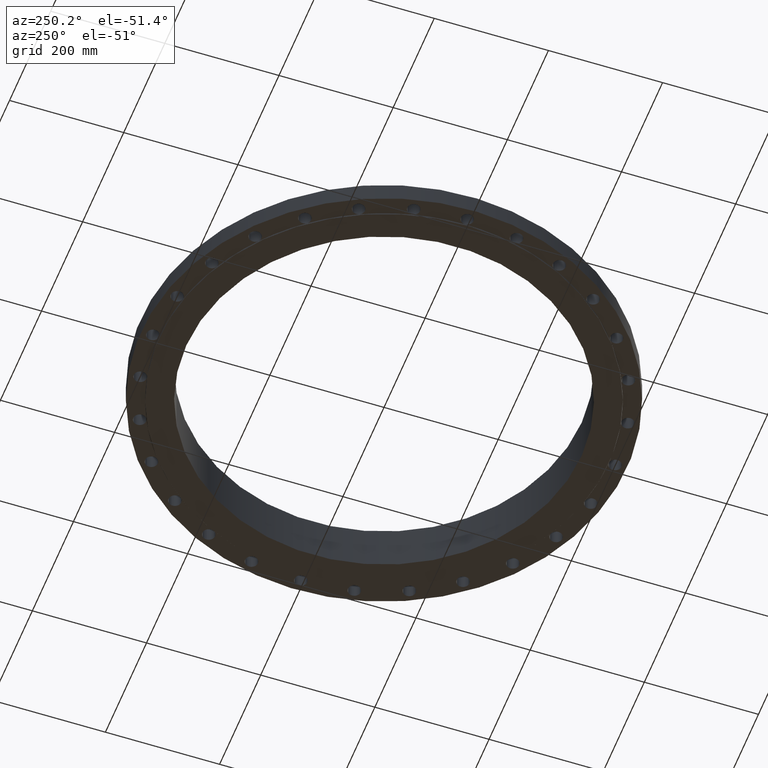
[diagram: clean part render]
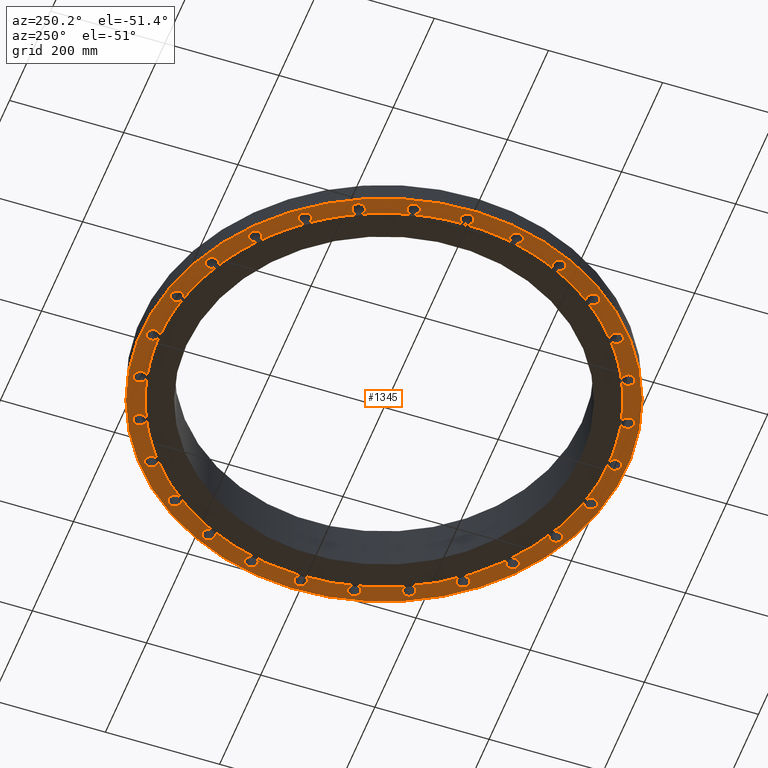
[diagram: same view with one face highlighted and labeled with its STEP entity id]
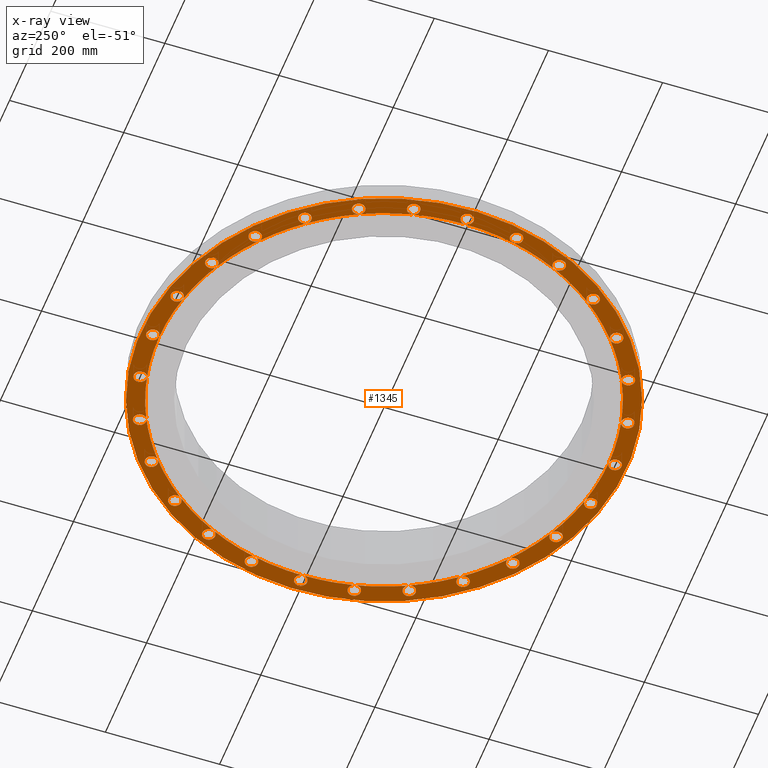
[diagram: x-ray of the same camera — body ghosted, the highlighted face saturated]
A machine part, auxiliary view. The second image highlights one B-rep face of the part: STEP entity #1345.
The next image is the same camera in x-ray: the body ghosted, the highlighted face saturated — about 0% of this face is hidden behind the body in this view.
In plain terms, the highlighted planar face has unit normal (0, 0, -1).
Its self-contained STEP definition (entity closure, byte-faithful):
#51=AXIS2_PLACEMENT_3D('Circle Axis2P3D',#49,#50,$) ;
#77=AXIS2_PLACEMENT_3D('Circle Axis2P3D',#75,#76,$) ;
#84=AXIS2_PLACEMENT_3D('Circle Axis2P3D',#82,#83,$) ;
#107=AXIS2_PLACEMENT_3D('Circle Axis2P3D',#105,#106,$) ;
#142=AXIS2_PLACEMENT_3D('Circle Axis2P3D',#140,#141,$) ;
#456=AXIS2_PLACEMENT_3D('Circle Axis2P3D',#454,#455,$) ;
#463=AXIS2_PLACEMENT_3D('Circle Axis2P3D',#461,#462,$) ;
#470=AXIS2_PLACEMENT_3D('Circle Axis2P3D',#468,#469,$) ;
#477=AXIS2_PLACEMENT_3D('Circle Axis2P3D',#475,#476,$) ;
#484=AXIS2_PLACEMENT_3D('Circle Axis2P3D',#482,#483,$) ;
#489=AXIS2_PLACEMENT_3D('Circle Axis2P3D',#487,#488,$) ;
#496=AXIS2_PLACEMENT_3D('Circle Axis2P3D',#494,#495,$) ;
#503=AXIS2_PLACEMENT_3D('Circle Axis2P3D',#501,#502,$) ;
#510=AXIS2_PLACEMENT_3D('Circle Axis2P3D',#508,#509,$) ;
#517=AXIS2_PLACEMENT_3D('Circle Axis2P3D',#515,#516,$) ;
#524=AXIS2_PLACEMENT_3D('Circle Axis2P3D',#522,#523,$) ;
#531=AXIS2_PLACEMENT_3D('Circle Axis2P3D',#529,#530,$) ;
#538=AXIS2_PLACEMENT_3D('Circle Axis2P3D',#536,#537,$) ;
#545=AXIS2_PLACEMENT_3D('Circle Axis2P3D',#543,#544,$) ;
#552=AXIS2_PLACEMENT_3D('Circle Axis2P3D',#550,#551,$) ;
#585=AXIS2_PLACEMENT_3D('Circle Axis2P3D',#583,#584,$) ;
#592=AXIS2_PLACEMENT_3D('Circle Axis2P3D',#590,#591,$) ;
#599=AXIS2_PLACEMENT_3D('Circle Axis2P3D',#597,#598,$) ;
#606=AXIS2_PLACEMENT_3D('Circle Axis2P3D',#604,#605,$) ;
#613=AXIS2_PLACEMENT_3D('Circle Axis2P3D',#611,#612,$) ;
#620=AXIS2_PLACEMENT_3D('Circle Axis2P3D',#618,#619,$) ;
#627=AXIS2_PLACEMENT_3D('Circle Axis2P3D',#625,#626,$) ;
#634=AXIS2_PLACEMENT_3D('Circle Axis2P3D',#632,#633,$) ;
#641=AXIS2_PLACEMENT_3D('Circle Axis2P3D',#639,#640,$) ;
#648=AXIS2_PLACEMENT_3D('Circle Axis2P3D',#646,#647,$) ;
#655=AXIS2_PLACEMENT_3D('Circle Axis2P3D',#653,#654,$) ;
#662=AXIS2_PLACEMENT_3D('Circle Axis2P3D',#660,#661,$) ;
#669=AXIS2_PLACEMENT_3D('Circle Axis2P3D',#667,#668,$) ;
#676=AXIS2_PLACEMENT_3D('Circle Axis2P3D',#674,#675,$) ;
#683=AXIS2_PLACEMENT_3D('Circle Axis2P3D',#681,#682,$) ;
#710=AXIS2_PLACEMENT_3D('Plane Axis2P3D',#707,#708,#709) ;
#718=AXIS2_PLACEMENT_3D('Circle Axis2P3D',#716,#717,$) ;
#725=AXIS2_PLACEMENT_3D('Circle Axis2P3D',#723,#724,$) ;
#732=AXIS2_PLACEMENT_3D('Circle Axis2P3D',#730,#731,$) ;
#737=AXIS2_PLACEMENT_3D('Circle Axis2P3D',#735,#736,$) ;
#744=AXIS2_PLACEMENT_3D('Circle Axis2P3D',#742,#743,$) ;
#751=AXIS2_PLACEMENT_3D('Circle Axis2P3D',#749,#750,$) ;
#756=AXIS2_PLACEMENT_3D('Circle Axis2P3D',#754,#755,$) ;
#763=AXIS2_PLACEMENT_3D('Circle Axis2P3D',#761,#762,$) ;
#770=AXIS2_PLACEMENT_3D('Circle Axis2P3D',#768,#769,$) ;
#775=AXIS2_PLACEMENT_3D('Circle Axis2P3D',#773,#774,$) ;
#782=AXIS2_PLACEMENT_3D('Circle Axis2P3D',#780,#781,$) ;
#789=AXIS2_PLACEMENT_3D('Circle Axis2P3D',#787,#788,$) ;
#794=AXIS2_PLACEMENT_3D('Circle Axis2P3D',#792,#793,$) ;
#801=AXIS2_PLACEMENT_3D('Circle Axis2P3D',#799,#800,$) ;
#808=AXIS2_PLACEMENT_3D('Circle Axis2P3D',#806,#807,$) ;
#813=AXIS2_PLACEMENT_3D('Circle Axis2P3D',#811,#812,$) ;
#820=AXIS2_PLACEMENT_3D('Circle Axis2P3D',#818,#819,$) ;
#827=AXIS2_PLACEMENT_3D('Circle Axis2P3D',#825,#826,$) ;
#832=AXIS2_PLACEMENT_3D('Circle Axis2P3D',#830,#831,$) ;
#839=AXIS2_PLACEMENT_3D('Circle Axis2P3D',#837,#838,$) ;
#846=AXIS2_PLACEMENT_3D('Circle Axis2P3D',#844,#845,$) ;
#851=AXIS2_PLACEMENT_3D('Circle Axis2P3D',#849,#850,$) ;
#858=AXIS2_PLACEMENT_3D('Circle Axis2P3D',#856,#857,$) ;
#865=AXIS2_PLACEMENT_3D('Circle Axis2P3D',#863,#864,$) ;
#870=AXIS2_PLACEMENT_3D('Circle Axis2P3D',#868,#869,$) ;
#877=AXIS2_PLACEMENT_3D('Circle Axis2P3D',#875,#876,$) ;
#884=AXIS2_PLACEMENT_3D('Circle Axis2P3D',#882,#883,$) ;
#889=AXIS2_PLACEMENT_3D('Circle Axis2P3D',#887,#888,$) ;
#896=AXIS2_PLACEMENT_3D('Circle Axis2P3D',#894,#895,$) ;
#903=AXIS2_PLACEMENT_3D('Circle Axis2P3D',#901,#902,$) ;
#908=AXIS2_PLACEMENT_3D('Circle Axis2P3D',#906,#907,$) ;
#915=AXIS2_PLACEMENT_3D('Circle Axis2P3D',#913,#914,$) ;
#922=AXIS2_PLACEMENT_3D('Circle Axis2P3D',#920,#921,$) ;
#927=AXIS2_PLACEMENT_3D('Circle Axis2P3D',#925,#926,$) ;
#934=AXIS2_PLACEMENT_3D('Circle Axis2P3D',#932,#933,$) ;
#941=AXIS2_PLACEMENT_3D('Circle Axis2P3D',#939,#940,$) ;
#946=AXIS2_PLACEMENT_3D('Circle Axis2P3D',#944,#945,$) ;
#953=AXIS2_PLACEMENT_3D('Circle Axis2P3D',#951,#952,$) ;
#960=AXIS2_PLACEMENT_3D('Circle Axis2P3D',#958,#959,$) ;
#965=AXIS2_PLACEMENT_3D('Circle Axis2P3D',#963,#964,$) ;
#972=AXIS2_PLACEMENT_3D('Circle Axis2P3D',#970,#971,$) ;
#979=AXIS2_PLACEMENT_3D('Circle Axis2P3D',#977,#978,$) ;
#984=AXIS2_PLACEMENT_3D('Circle Axis2P3D',#982,#983,$) ;
#991=AXIS2_PLACEMENT_3D('Circle Axis2P3D',#989,#990,$) ;
#998=AXIS2_PLACEMENT_3D('Circle Axis2P3D',#996,#997,$) ;
#1003=AXIS2_PLACEMENT_3D('Circle Axis2P3D',#1001,#1002,$) ;
#1010=AXIS2_PLACEMENT_3D('Circle Axis2P3D',#1008,#1009,$) ;
#1017=AXIS2_PLACEMENT_3D('Circle Axis2P3D',#1015,#1016,$) ;
#1022=AXIS2_PLACEMENT_3D('Circle Axis2P3D',#1020,#1021,$) ;
#1029=AXIS2_PLACEMENT_3D('Circle Axis2P3D',#1027,#1028,$) ;
#1036=AXIS2_PLACEMENT_3D('Circle Axis2P3D',#1034,#1035,$) ;
#1041=AXIS2_PLACEMENT_3D('Circle Axis2P3D',#1039,#1040,$) ;
#1048=AXIS2_PLACEMENT_3D('Circle Axis2P3D',#1046,#1047,$) ;
#1055=AXIS2_PLACEMENT_3D('Circle Axis2P3D',#1053,#1054,$) ;
#1060=AXIS2_PLACEMENT_3D('Circle Axis2P3D',#1058,#1059,$) ;
#1067=AXIS2_PLACEMENT_3D('Circle Axis2P3D',#1065,#1066,$) ;
#1074=AXIS2_PLACEMENT_3D('Circle Axis2P3D',#1072,#1073,$) ;
#1079=AXIS2_PLACEMENT_3D('Circle Axis2P3D',#1077,#1078,$) ;
#1086=AXIS2_PLACEMENT_3D('Circle Axis2P3D',#1084,#1085,$) ;
#1093=AXIS2_PLACEMENT_3D('Circle Axis2P3D',#1091,#1092,$) ;
#1098=AXIS2_PLACEMENT_3D('Circle Axis2P3D',#1096,#1097,$) ;
#1105=AXIS2_PLACEMENT_3D('Circle Axis2P3D',#1103,#1104,$) ;
#1112=AXIS2_PLACEMENT_3D('Circle Axis2P3D',#1110,#1111,$) ;
#1117=AXIS2_PLACEMENT_3D('Circle Axis2P3D',#1115,#1116,$) ;
#1124=AXIS2_PLACEMENT_3D('Circle Axis2P3D',#1122,#1123,$) ;
#1131=AXIS2_PLACEMENT_3D('Circle Axis2P3D',#1129,#1130,$) ;
#1136=AXIS2_PLACEMENT_3D('Circle Axis2P3D',#1134,#1135,$) ;
#1143=AXIS2_PLACEMENT_3D('Circle Axis2P3D',#1141,#1142,$) ;
#1150=AXIS2_PLACEMENT_3D('Circle Axis2P3D',#1148,#1149,$) ;
#1155=AXIS2_PLACEMENT_3D('Circle Axis2P3D',#1153,#1154,$) ;
#1162=AXIS2_PLACEMENT_3D('Circle Axis2P3D',#1160,#1161,$) ;
#1169=AXIS2_PLACEMENT_3D('Circle Axis2P3D',#1167,#1168,$) ;
#1174=AXIS2_PLACEMENT_3D('Circle Axis2P3D',#1172,#1173,$) ;
#1181=AXIS2_PLACEMENT_3D('Circle Axis2P3D',#1179,#1180,$) ;
#1188=AXIS2_PLACEMENT_3D('Circle Axis2P3D',#1186,#1187,$) ;
#1193=AXIS2_PLACEMENT_3D('Circle Axis2P3D',#1191,#1192,$) ;
#1200=AXIS2_PLACEMENT_3D('Circle Axis2P3D',#1198,#1199,$) ;
#1207=AXIS2_PLACEMENT_3D('Circle Axis2P3D',#1205,#1206,$) ;
#1212=AXIS2_PLACEMENT_3D('Circle Axis2P3D',#1210,#1211,$) ;
#1219=AXIS2_PLACEMENT_3D('Circle Axis2P3D',#1217,#1218,$) ;
#1226=AXIS2_PLACEMENT_3D('Circle Axis2P3D',#1224,#1225,$) ;
#44=CARTESIAN_POINT('Vertex',(15.5538636728,0.210947236987,0.)) ;
#49=CARTESIAN_POINT('Axis2P3D Location',(15.9400000001,0.,0.)) ;
#53=CARTESIAN_POINT('Vertex',(16.3261363273,-0.210947236987,0.)) ;
#75=CARTESIAN_POINT('Axis2P3D Location',(15.9400000001,0.,0.)) ;
#79=CARTESIAN_POINT('Vertex',(15.5000000001,1.75631705828E-014,1.95818864186E-015)) ;
#82=CARTESIAN_POINT('Axis2P3D Location',(15.9400000001,0.,0.)) ;
#105=CARTESIAN_POINT('Axis2P3D Location',(0.,0.,1.95818864186E-015)) ;
#109=CARTESIAN_POINT('Vertex',(-8.03037777165,-14.6995079117,1.95818864186E-015)) ;
#111=CARTESIAN_POINT('Vertex',(8.03037777165,14.6995079117,1.95818864186E-015)) ;
#140=CARTESIAN_POINT('Axis2P3D Location',(0.,0.,1.95818864186E-015)) ;
#451=CARTESIAN_POINT('Vertex',(7.43109584839,13.6025297094,1.95818864186E-015)) ;
#454=CARTESIAN_POINT('Axis2P3D Location',(0.,0.,1.95818864186E-015)) ;
#458=CARTESIAN_POINT('Vertex',(9.66409192885,12.1183879783,0.)) ;
#461=CARTESIAN_POINT('Axis2P3D Location',(0.,0.,1.95818864186E-015)) ;
#465=CARTESIAN_POINT('Vertex',(12.1183879783,9.66409192885,0.)) ;
#468=CARTESIAN_POINT('Axis2P3D Location',(0.,0.,1.95818864186E-015)) ;
#472=CARTESIAN_POINT('Vertex',(13.9650174525,6.72519795635,0.)) ;
#475=CARTESIAN_POINT('Axis2P3D Location',(0.,0.,1.95818864186E-015)) ;
#479=CARTESIAN_POINT('Vertex',(15.1113826389,3.44907447634,0.)) ;
#482=CARTESIAN_POINT('Axis2P3D Location',(0.,0.,1.95818864186E-015)) ;
#487=CARTESIAN_POINT('Axis2P3D Location',(0.,0.,1.95818864186E-015)) ;
#491=CARTESIAN_POINT('Vertex',(15.1113826389,-3.44907447634,0.)) ;
#494=CARTESIAN_POINT('Axis2P3D Location',(0.,0.,1.95818864186E-015)) ;
#498=CARTESIAN_POINT('Vertex',(13.9650174525,-6.72519795635,0.)) ;
#501=CARTESIAN_POINT('Axis2P3D Location',(0.,0.,1.95818864186E-015)) ;
#505=CARTESIAN_POINT('Vertex',(12.1183879783,-9.66409192885,0.)) ;
#508=CARTESIAN_POINT('Axis2P3D Location',(0.,0.,1.95818864186E-015)) ;
#512=CARTESIAN_POINT('Vertex',(9.66409192885,-12.1183879783,0.)) ;
#515=CARTESIAN_POINT('Axis2P3D Location',(0.,0.,1.95818864186E-015)) ;
#519=CARTESIAN_POINT('Vertex',(6.72519795635,-13.9650174525,0.)) ;
#522=CARTESIAN_POINT('Axis2P3D Location',(0.,0.,1.95818864186E-015)) ;
#526=CARTESIAN_POINT('Vertex',(3.44907447634,-15.1113826389,0.)) ;
#529=CARTESIAN_POINT('Axis2P3D Location',(0.,0.,1.95818864186E-015)) ;
#533=CARTESIAN_POINT('Vertex',(5.30419207637E-015,-15.5000000001,0.)) ;
#536=CARTESIAN_POINT('Axis2P3D Location',(0.,0.,1.95818864186E-015)) ;
#540=CARTESIAN_POINT('Vertex',(-3.44907447634,-15.1113826389,0.)) ;
#543=CARTESIAN_POINT('Axis2P3D Location',(0.,0.,1.95818864186E-015)) ;
#547=CARTESIAN_POINT('Vertex',(-6.72519795635,-13.9650174525,0.)) ;
#550=CARTESIAN_POINT('Axis2P3D Location',(0.,0.,1.95818864186E-015)) ;
#554=CARTESIAN_POINT('Vertex',(-7.43109584839,-13.6025297094,1.95818864186E-015)) ;
#583=CARTESIAN_POINT('Axis2P3D Location',(0.,0.,1.95818864186E-015)) ;
#587=CARTESIAN_POINT('Vertex',(-9.66409192885,-12.1183879783,0.)) ;
#590=CARTESIAN_POINT('Axis2P3D Location',(0.,0.,1.95818864186E-015)) ;
#594=CARTESIAN_POINT('Vertex',(-12.1183879783,-9.66409192885,0.)) ;
#597=CARTESIAN_POINT('Axis2P3D Location',(0.,0.,1.95818864186E-015)) ;
#601=CARTESIAN_POINT('Vertex',(-13.9650174525,-6.72519795635,0.)) ;
#604=CARTESIAN_POINT('Axis2P3D Location',(0.,0.,1.95818864186E-015)) ;
#608=CARTESIAN_POINT('Vertex',(-15.1113826389,-3.44907447634,0.)) ;
#611=CARTESIAN_POINT('Axis2P3D Location',(0.,0.,1.95818864186E-015)) ;
#615=CARTESIAN_POINT('Vertex',(-15.5000000001,-8.95171950564E-015,0.)) ;
#618=CARTESIAN_POINT('Axis2P3D Location',(0.,0.,1.95818864186E-015)) ;
#622=CARTESIAN_POINT('Vertex',(-15.1113826389,3.44907447634,0.)) ;
#625=CARTESIAN_POINT('Axis2P3D Location',(0.,0.,1.95818864186E-015)) ;
#629=CARTESIAN_POINT('Vertex',(-13.9650174525,6.72519795635,0.)) ;
#632=CARTESIAN_POINT('Axis2P3D Location',(0.,0.,1.95818864186E-015)) ;
#636=CARTESIAN_POINT('Vertex',(-12.1183879783,9.66409192885,0.)) ;
#639=CARTESIAN_POINT('Axis2P3D Location',(0.,0.,1.95818864186E-015)) ;
#643=CARTESIAN_POINT('Vertex',(-9.66409192885,12.1183879783,0.)) ;
#646=CARTESIAN_POINT('Axis2P3D Location',(0.,0.,1.95818864186E-015)) ;
#650=CARTESIAN_POINT('Vertex',(-6.72519795635,13.9650174525,0.)) ;
#653=CARTESIAN_POINT('Axis2P3D Location',(0.,0.,1.95818864186E-015)) ;
#657=CARTESIAN_POINT('Vertex',(-3.44907447634,15.1113826389,0.)) ;
#660=CARTESIAN_POINT('Axis2P3D Location',(0.,0.,1.95818864186E-015)) ;
#664=CARTESIAN_POINT('Vertex',(4.14452382458E-016,15.5000000001,0.)) ;
#667=CARTESIAN_POINT('Axis2P3D Location',(0.,0.,1.95818864186E-015)) ;
#671=CARTESIAN_POINT('Vertex',(3.44907447634,15.1113826389,0.)) ;
#674=CARTESIAN_POINT('Axis2P3D Location',(0.,0.,1.95818864186E-015)) ;
#678=CARTESIAN_POINT('Vertex',(6.72519795635,13.9650174525,0.)) ;
#681=CARTESIAN_POINT('Axis2P3D Location',(0.,0.,1.95818864186E-015)) ;
#707=CARTESIAN_POINT('Axis2P3D Location',(0.,15.5000000001,0.)) ;
#716=CARTESIAN_POINT('Axis2P3D Location',(14.3614437544,-6.91610680156,0.)) ;
#720=CARTESIAN_POINT('Vertex',(14.6178139881,-7.27370196833,0.)) ;
#723=CARTESIAN_POINT('Axis2P3D Location',(14.3614437544,-6.91610680156,0.)) ;
#727=CARTESIAN_POINT('Vertex',(14.1050735208,-6.5585116348,0.)) ;
#730=CARTESIAN_POINT('Axis2P3D Location',(14.3614437544,-6.91610680156,0.)) ;
#735=CARTESIAN_POINT('Axis2P3D Location',(15.5403509202,-3.54698368728,0.)) ;
#739=CARTESIAN_POINT('Vertex',(15.8698658274,-3.83856545278,0.)) ;
#742=CARTESIAN_POINT('Axis2P3D Location',(15.5403509202,-3.54698368728,0.)) ;
#746=CARTESIAN_POINT('Vertex',(15.2108360131,-3.25540192177,0.)) ;
#749=CARTESIAN_POINT('Axis2P3D Location',(15.5403509202,-3.54698368728,0.)) ;
#754=CARTESIAN_POINT('Axis2P3D Location',(15.5403509202,3.54698368728,0.)) ;
#758=CARTESIAN_POINT('Vertex',(15.9637461798,3.42724875411,0.)) ;
#761=CARTESIAN_POINT('Axis2P3D Location',(15.5403509202,3.54698368728,0.)) ;
#765=CARTESIAN_POINT('Vertex',(15.1169556607,3.66671862044,0.)) ;
#768=CARTESIAN_POINT('Axis2P3D Location',(15.5403509202,3.54698368728,0.)) ;
#773=CARTESIAN_POINT('Axis2P3D Location',(14.3614437544,6.91610680156,0.)) ;
#777=CARTESIAN_POINT('Vertex',(14.80086714,6.89358818174,0.)) ;
#780=CARTESIAN_POINT('Axis2P3D Location',(14.3614437544,6.91610680156,0.)) ;
#784=CARTESIAN_POINT('Vertex',(13.9220203689,6.93862542139,0.)) ;
#787=CARTESIAN_POINT('Axis2P3D Location',(14.3614437544,6.91610680156,0.)) ;
#792=CARTESIAN_POINT('Axis2P3D Location',(12.4623938306,9.93842744167,0.)) ;
#796=CARTESIAN_POINT('Vertex',(12.8958108187,10.0142543128,0.)) ;
#799=CARTESIAN_POINT('Axis2P3D Location',(12.4623938306,9.93842744167,0.)) ;
#803=CARTESIAN_POINT('Vertex',(12.0289768424,9.86260057053,0.)) ;
#806=CARTESIAN_POINT('Axis2P3D Location',(12.4623938306,9.93842744167,0.)) ;
#811=CARTESIAN_POINT('Axis2P3D Location',(9.93842744167,12.4623938306,0.)) ;
#815=CARTESIAN_POINT('Vertex',(10.3441046948,12.6327639168,0.)) ;
#818=CARTESIAN_POINT('Axis2P3D Location',(9.93842744167,12.4623938306,0.)) ;
#822=CARTESIAN_POINT('Vertex',(9.53275018849,12.2920237444,0.)) ;
#825=CARTESIAN_POINT('Axis2P3D Location',(9.93842744167,12.4623938306,0.)) ;
#830=CARTESIAN_POINT('Axis2P3D Location',(6.91610680156,14.3614437544,0.)) ;
#834=CARTESIAN_POINT('Vertex',(7.27370196833,14.6178139881,0.)) ;
#837=CARTESIAN_POINT('Axis2P3D Location',(6.91610680156,14.3614437544,0.)) ;
#841=CARTESIAN_POINT('Vertex',(6.5585116348,14.1050735208,0.)) ;
#844=CARTESIAN_POINT('Axis2P3D Location',(6.91610680156,14.3614437544,0.)) ;
#849=CARTESIAN_POINT('Axis2P3D Location',(3.54698368728,15.5403509202,0.)) ;
#853=CARTESIAN_POINT('Vertex',(3.83856545278,15.8698658274,0.)) ;
#856=CARTESIAN_POINT('Axis2P3D Location',(3.54698368728,15.5403509202,0.)) ;
#860=CARTESIAN_POINT('Vertex',(3.25540192177,15.2108360131,0.)) ;
#863=CARTESIAN_POINT('Axis2P3D Location',(3.54698368728,15.5403509202,0.)) ;
#868=CARTESIAN_POINT('Axis2P3D Location',(2.79741234551E-016,15.9400000001,0.)) ;
#872=CARTESIAN_POINT('Vertex',(0.210947236987,16.3261363273,0.)) ;
#875=CARTESIAN_POINT('Axis2P3D Location',(-8.39223703654E-016,15.9400000001,0.)) ;
#879=CARTESIAN_POINT('Vertex',(-0.210947236987,15.5538636728,0.)) ;
#882=CARTESIAN_POINT('Axis2P3D Location',(2.79741234551E-016,15.9400000001,0.)) ;
#887=CARTESIAN_POINT('Axis2P3D Location',(-3.54698368728,15.5403509202,0.)) ;
#891=CARTESIAN_POINT('Vertex',(-3.42724875411,15.9637461798,0.)) ;
#894=CARTESIAN_POINT('Axis2P3D Location',(-3.54698368728,15.5403509202,0.)) ;
#898=CARTESIAN_POINT('Vertex',(-3.66671862044,15.1169556607,0.)) ;
#901=CARTESIAN_POINT('Axis2P3D Location',(-3.54698368728,15.5403509202,0.)) ;
#906=CARTESIAN_POINT('Axis2P3D Location',(-6.91610680156,14.3614437544,0.)) ;
#910=CARTESIAN_POINT('Vertex',(-6.89358818174,14.80086714,0.)) ;
#913=CARTESIAN_POINT('Axis2P3D Location',(-6.91610680156,14.3614437544,0.)) ;
#917=CARTESIAN_POINT('Vertex',(-6.93862542139,13.9220203689,0.)) ;
#920=CARTESIAN_POINT('Axis2P3D Location',(-6.91610680156,14.3614437544,0.)) ;
#925=CARTESIAN_POINT('Axis2P3D Location',(-9.93842744167,12.4623938306,0.)) ;
#929=CARTESIAN_POINT('Vertex',(-10.0142543128,12.8958108187,0.)) ;
#932=CARTESIAN_POINT('Axis2P3D Location',(-9.93842744167,12.4623938306,0.)) ;
#936=CARTESIAN_POINT('Vertex',(-9.86260057053,12.0289768424,0.)) ;
#939=CARTESIAN_POINT('Axis2P3D Location',(-9.93842744167,12.4623938306,0.)) ;
#944=CARTESIAN_POINT('Axis2P3D Location',(-12.4623938306,9.93842744167,0.)) ;
#948=CARTESIAN_POINT('Vertex',(-12.6327639168,10.3441046948,0.)) ;
#951=CARTESIAN_POINT('Axis2P3D Location',(-12.4623938306,9.93842744167,0.)) ;
#955=CARTESIAN_POINT('Vertex',(-12.2920237444,9.53275018849,0.)) ;
#958=CARTESIAN_POINT('Axis2P3D Location',(-12.4623938306,9.93842744167,0.)) ;
#963=CARTESIAN_POINT('Axis2P3D Location',(-14.3614437544,6.91610680156,0.)) ;
#967=CARTESIAN_POINT('Vertex',(-14.6178139881,7.27370196833,0.)) ;
#970=CARTESIAN_POINT('Axis2P3D Location',(-14.3614437544,6.91610680156,0.)) ;
#974=CARTESIAN_POINT('Vertex',(-14.1050735208,6.5585116348,0.)) ;
#977=CARTESIAN_POINT('Axis2P3D Location',(-14.3614437544,6.91610680156,0.)) ;
#982=CARTESIAN_POINT('Axis2P3D Location',(-15.5403509202,3.54698368728,0.)) ;
#986=CARTESIAN_POINT('Vertex',(-15.8698658274,3.83856545278,0.)) ;
#989=CARTESIAN_POINT('Axis2P3D Location',(-15.5403509202,3.54698368728,0.)) ;
#993=CARTESIAN_POINT('Vertex',(-15.2108360131,3.25540192177,0.)) ;
#996=CARTESIAN_POINT('Axis2P3D Location',(-15.5403509202,3.54698368728,0.)) ;
#1001=CARTESIAN_POINT('Axis2P3D Location',(-15.9400000001,-8.95171950564E-015,0.)) ;
#1005=CARTESIAN_POINT('Vertex',(-16.3261363273,0.210947236987,0.)) ;
#1008=CARTESIAN_POINT('Axis2P3D Location',(-15.9400000001,-8.95171950564E-015,0.)) ;
#1012=CARTESIAN_POINT('Vertex',(-15.5538636728,-0.210947236987,0.)) ;
#1015=CARTESIAN_POINT('Axis2P3D Location',(-15.9400000001,-8.95171950564E-015,0.)) ;
#1020=CARTESIAN_POINT('Axis2P3D Location',(-15.5403509202,-3.54698368728,0.)) ;
#1024=CARTESIAN_POINT('Vertex',(-15.9637461798,-3.42724875411,0.)) ;
#1027=CARTESIAN_POINT('Axis2P3D Location',(-15.5403509202,-3.54698368728,0.)) ;
#1031=CARTESIAN_POINT('Vertex',(-15.1169556607,-3.66671862044,0.)) ;
#1034=CARTESIAN_POINT('Axis2P3D Location',(-15.5403509202,-3.54698368728,0.)) ;
#1039=CARTESIAN_POINT('Axis2P3D Location',(-14.3614437544,-6.91610680156,0.)) ;
#1043=CARTESIAN_POINT('Vertex',(-14.80086714,-6.89358818174,-1.1189649382E-015)) ;
#1046=CARTESIAN_POINT('Axis2P3D Location',(-14.3614437544,-6.91610680156,0.)) ;
#1050=CARTESIAN_POINT('Vertex',(-13.9220203689,-6.93862542139,0.)) ;
#1053=CARTESIAN_POINT('Axis2P3D Location',(-14.3614437544,-6.91610680156,0.)) ;
#1058=CARTESIAN_POINT('Axis2P3D Location',(-12.4623938306,-9.93842744167,0.)) ;
#1062=CARTESIAN_POINT('Vertex',(-12.8958108187,-10.0142543128,0.)) ;
#1065=CARTESIAN_POINT('Axis2P3D Location',(-12.4623938306,-9.93842744167,0.)) ;
#1069=CARTESIAN_POINT('Vertex',(-12.0289768424,-9.86260057053,0.)) ;
#1072=CARTESIAN_POINT('Axis2P3D Location',(-12.4623938306,-9.93842744167,0.)) ;
#1077=CARTESIAN_POINT('Axis2P3D Location',(-9.93842744167,-12.4623938306,0.)) ;
#1081=CARTESIAN_POINT('Vertex',(-10.3441046948,-12.6327639168,0.)) ;
#1084=CARTESIAN_POINT('Axis2P3D Location',(-9.93842744167,-12.4623938306,0.)) ;
#1088=CARTESIAN_POINT('Vertex',(-9.53275018849,-12.2920237444,0.)) ;
#1091=CARTESIAN_POINT('Axis2P3D Location',(-9.93842744167,-12.4623938306,0.)) ;
#1096=CARTESIAN_POINT('Axis2P3D Location',(-6.91610680156,-14.3614437544,0.)) ;
#1100=CARTESIAN_POINT('Vertex',(-7.27370196833,-14.6178139881,0.)) ;
#1103=CARTESIAN_POINT('Axis2P3D Location',(-6.91610680156,-14.3614437544,0.)) ;
#1107=CARTESIAN_POINT('Vertex',(-6.5585116348,-14.1050735208,0.)) ;
#1110=CARTESIAN_POINT('Axis2P3D Location',(-6.91610680156,-14.3614437544,0.)) ;
#1115=CARTESIAN_POINT('Axis2P3D Location',(-3.54698368728,-15.5403509202,0.)) ;
#1119=CARTESIAN_POINT('Vertex',(-3.83856545278,-15.8698658274,-1.1189649382E-015)) ;
#1122=CARTESIAN_POINT('Axis2P3D Location',(-3.54698368728,-15.5403509202,0.)) ;
#1126=CARTESIAN_POINT('Vertex',(-3.25540192177,-15.2108360131,0.)) ;
#1129=CARTESIAN_POINT('Axis2P3D Location',(-3.54698368728,-15.5403509202,0.)) ;
#1134=CARTESIAN_POINT('Axis2P3D Location',(5.38501876511E-015,-15.9400000001,0.)) ;
#1138=CARTESIAN_POINT('Vertex',(-0.210947236987,-16.3261363273,0.)) ;
#1141=CARTESIAN_POINT('Axis2P3D Location',(2.27289753073E-015,-15.9400000001,0.)) ;
#1145=CARTESIAN_POINT('Vertex',(0.210947236987,-15.5538636728,0.)) ;
#1148=CARTESIAN_POINT('Axis2P3D Location',(5.38501876511E-015,-15.9400000001,0.)) ;
#1153=CARTESIAN_POINT('Axis2P3D Location',(3.54698368728,-15.5403509202,0.)) ;
#1157=CARTESIAN_POINT('Vertex',(3.42724875411,-15.9637461798,0.)) ;
#1160=CARTESIAN_POINT('Axis2P3D Location',(3.54698368728,-15.5403509202,0.)) ;
#1164=CARTESIAN_POINT('Vertex',(3.66671862044,-15.1169556607,0.)) ;
#1167=CARTESIAN_POINT('Axis2P3D Location',(3.54698368728,-15.5403509202,0.)) ;
#1172=CARTESIAN_POINT('Axis2P3D Location',(6.91610680156,-14.3614437544,0.)) ;
#1176=CARTESIAN_POINT('Vertex',(6.89358818174,-14.80086714,0.)) ;
#1179=CARTESIAN_POINT('Axis2P3D Location',(6.91610680156,-14.3614437544,0.)) ;
#1183=CARTESIAN_POINT('Vertex',(6.93862542139,-13.9220203689,0.)) ;
#1186=CARTESIAN_POINT('Axis2P3D Location',(6.91610680156,-14.3614437544,0.)) ;
#1191=CARTESIAN_POINT('Axis2P3D Location',(9.93842744167,-12.4623938306,0.)) ;
#1195=CARTESIAN_POINT('Vertex',(10.0142543128,-12.8958108187,0.)) ;
#1198=CARTESIAN_POINT('Axis2P3D Location',(9.93842744167,-12.4623938306,0.)) ;
#1202=CARTESIAN_POINT('Vertex',(9.86260057053,-12.0289768424,0.)) ;
#1205=CARTESIAN_POINT('Axis2P3D Location',(9.93842744167,-12.4623938306,0.)) ;
#1210=CARTESIAN_POINT('Axis2P3D Location',(12.4623938306,-9.93842744167,0.)) ;
#1214=CARTESIAN_POINT('Vertex',(12.6327639168,-10.3441046948,-1.1189649382E-015)) ;
#1217=CARTESIAN_POINT('Axis2P3D Location',(12.4623938306,-9.93842744167,0.)) ;
#1221=CARTESIAN_POINT('Vertex',(12.2920237444,-9.53275018849,0.)) ;
#1224=CARTESIAN_POINT('Axis2P3D Location',(12.4623938306,-9.93842744167,0.)) ;
#50=DIRECTION('Axis2P3D Direction',(0.,-0.,-0.0393700787402)) ;
#76=DIRECTION('Axis2P3D Direction',(0.,-0.,-0.0393700787402)) ;
#83=DIRECTION('Axis2P3D Direction',(0.,-0.,-0.0393700787402)) ;
#106=DIRECTION('Axis2P3D Direction',(0.,0.,-0.0393700787402)) ;
#141=DIRECTION('Axis2P3D Direction',(0.,0.,-0.0393700787402)) ;
#455=DIRECTION('Axis2P3D Direction',(0.,0.,-0.0393700787402)) ;
#462=DIRECTION('Axis2P3D Direction',(0.,0.,-0.0393700787402)) ;
#469=DIRECTION('Axis2P3D Direction',(0.,0.,-0.0393700787402)) ;
#476=DIRECTION('Axis2P3D Direction',(0.,0.,-0.0393700787402)) ;
#483=DIRECTION('Axis2P3D Direction',(0.,0.,-0.0393700787402)) ;
#488=DIRECTION('Axis2P3D Direction',(0.,0.,-0.0393700787402)) ;
#495=DIRECTION('Axis2P3D Direction',(0.,0.,-0.0393700787402)) ;
#502=DIRECTION('Axis2P3D Direction',(0.,0.,-0.0393700787402)) ;
#509=DIRECTION('Axis2P3D Direction',(0.,0.,-0.0393700787402)) ;
#516=DIRECTION('Axis2P3D Direction',(0.,0.,-0.0393700787402)) ;
#523=DIRECTION('Axis2P3D Direction',(0.,0.,-0.0393700787402)) ;
#530=DIRECTION('Axis2P3D Direction',(0.,0.,-0.0393700787402)) ;
#537=DIRECTION('Axis2P3D Direction',(0.,0.,-0.0393700787402)) ;
#544=DIRECTION('Axis2P3D Direction',(0.,0.,-0.0393700787402)) ;
#551=DIRECTION('Axis2P3D Direction',(0.,0.,-0.0393700787402)) ;
#584=DIRECTION('Axis2P3D Direction',(0.,0.,-0.0393700787402)) ;
#591=DIRECTION('Axis2P3D Direction',(0.,0.,-0.0393700787402)) ;
#598=DIRECTION('Axis2P3D Direction',(0.,0.,-0.0393700787402)) ;
#605=DIRECTION('Axis2P3D Direction',(0.,0.,-0.0393700787402)) ;
#612=DIRECTION('Axis2P3D Direction',(0.,0.,-0.0393700787402)) ;
#619=DIRECTION('Axis2P3D Direction',(0.,0.,-0.0393700787402)) ;
#626=DIRECTION('Axis2P3D Direction',(0.,0.,-0.0393700787402)) ;
#633=DIRECTION('Axis2P3D Direction',(0.,0.,-0.0393700787402)) ;
#640=DIRECTION('Axis2P3D Direction',(0.,0.,-0.0393700787402)) ;
#647=DIRECTION('Axis2P3D Direction',(0.,0.,-0.0393700787402)) ;
#654=DIRECTION('Axis2P3D Direction',(0.,0.,-0.0393700787402)) ;
#661=DIRECTION('Axis2P3D Direction',(0.,0.,-0.0393700787402)) ;
#668=DIRECTION('Axis2P3D Direction',(0.,0.,-0.0393700787402)) ;
#675=DIRECTION('Axis2P3D Direction',(0.,0.,-0.0393700787402)) ;
#682=DIRECTION('Axis2P3D Direction',(0.,0.,-0.0393700787402)) ;
#708=DIRECTION('Axis2P3D Direction',(0.,0.,-0.0393700787402)) ;
#709=DIRECTION('Axis2P3D XDirection',(0.0393700787402,0.,0.)) ;
#717=DIRECTION('Axis2P3D Direction',(0.,0.,-0.0393700787402)) ;
#724=DIRECTION('Axis2P3D Direction',(0.,0.,-0.0393700787402)) ;
#731=DIRECTION('Axis2P3D Direction',(0.,0.,-0.0393700787402)) ;
#736=DIRECTION('Axis2P3D Direction',(0.,0.,-0.0393700787402)) ;
#743=DIRECTION('Axis2P3D Direction',(0.,0.,-0.0393700787402)) ;
#750=DIRECTION('Axis2P3D Direction',(0.,0.,-0.0393700787402)) ;
#755=DIRECTION('Axis2P3D Direction',(0.,0.,-0.0393700787402)) ;
#762=DIRECTION('Axis2P3D Direction',(0.,0.,-0.0393700787402)) ;
#769=DIRECTION('Axis2P3D Direction',(0.,0.,-0.0393700787402)) ;
#774=DIRECTION('Axis2P3D Direction',(0.,0.,-0.0393700787402)) ;
#781=DIRECTION('Axis2P3D Direction',(0.,0.,-0.0393700787402)) ;
#788=DIRECTION('Axis2P3D Direction',(0.,0.,-0.0393700787402)) ;
#793=DIRECTION('Axis2P3D Direction',(0.,0.,-0.0393700787402)) ;
#800=DIRECTION('Axis2P3D Direction',(0.,0.,-0.0393700787402)) ;
#807=DIRECTION('Axis2P3D Direction',(0.,0.,-0.0393700787402)) ;
#812=DIRECTION('Axis2P3D Direction',(0.,0.,-0.0393700787402)) ;
#819=DIRECTION('Axis2P3D Direction',(0.,0.,-0.0393700787402)) ;
#826=DIRECTION('Axis2P3D Direction',(0.,0.,-0.0393700787402)) ;
#831=DIRECTION('Axis2P3D Direction',(0.,0.,-0.0393700787402)) ;
#838=DIRECTION('Axis2P3D Direction',(0.,0.,-0.0393700787402)) ;
#845=DIRECTION('Axis2P3D Direction',(0.,0.,-0.0393700787402)) ;
#850=DIRECTION('Axis2P3D Direction',(0.,0.,-0.0393700787402)) ;
#857=DIRECTION('Axis2P3D Direction',(0.,0.,-0.0393700787402)) ;
#864=DIRECTION('Axis2P3D Direction',(0.,0.,-0.0393700787402)) ;
#869=DIRECTION('Axis2P3D Direction',(0.,0.,-0.0393700787402)) ;
#876=DIRECTION('Axis2P3D Direction',(0.,0.,-0.0393700787402)) ;
#883=DIRECTION('Axis2P3D Direction',(0.,0.,-0.0393700787402)) ;
#888=DIRECTION('Axis2P3D Direction',(0.,0.,-0.0393700787402)) ;
#895=DIRECTION('Axis2P3D Direction',(0.,0.,-0.0393700787402)) ;
#902=DIRECTION('Axis2P3D Direction',(0.,0.,-0.0393700787402)) ;
#907=DIRECTION('Axis2P3D Direction',(0.,0.,-0.0393700787402)) ;
#914=DIRECTION('Axis2P3D Direction',(0.,0.,-0.0393700787402)) ;
#921=DIRECTION('Axis2P3D Direction',(0.,0.,-0.0393700787402)) ;
#926=DIRECTION('Axis2P3D Direction',(0.,0.,-0.0393700787402)) ;
#933=DIRECTION('Axis2P3D Direction',(0.,0.,-0.0393700787402)) ;
#940=DIRECTION('Axis2P3D Direction',(0.,0.,-0.0393700787402)) ;
#945=DIRECTION('Axis2P3D Direction',(0.,0.,-0.0393700787402)) ;
#952=DIRECTION('Axis2P3D Direction',(0.,0.,-0.0393700787402)) ;
#959=DIRECTION('Axis2P3D Direction',(0.,0.,-0.0393700787402)) ;
#964=DIRECTION('Axis2P3D Direction',(0.,0.,-0.0393700787402)) ;
#971=DIRECTION('Axis2P3D Direction',(0.,0.,-0.0393700787402)) ;
#978=DIRECTION('Axis2P3D Direction',(0.,0.,-0.0393700787402)) ;
#983=DIRECTION('Axis2P3D Direction',(0.,0.,-0.0393700787402)) ;
#990=DIRECTION('Axis2P3D Direction',(0.,0.,-0.0393700787402)) ;
#997=DIRECTION('Axis2P3D Direction',(0.,0.,-0.0393700787402)) ;
#1002=DIRECTION('Axis2P3D Direction',(0.,0.,-0.0393700787402)) ;
#1009=DIRECTION('Axis2P3D Direction',(0.,0.,-0.0393700787402)) ;
#1016=DIRECTION('Axis2P3D Direction',(0.,0.,-0.0393700787402)) ;
#1021=DIRECTION('Axis2P3D Direction',(0.,0.,-0.0393700787402)) ;
#1028=DIRECTION('Axis2P3D Direction',(0.,0.,-0.0393700787402)) ;
#1035=DIRECTION('Axis2P3D Direction',(0.,0.,-0.0393700787402)) ;
#1040=DIRECTION('Axis2P3D Direction',(0.,0.,-0.0393700787402)) ;
#1047=DIRECTION('Axis2P3D Direction',(0.,0.,-0.0393700787402)) ;
#1054=DIRECTION('Axis2P3D Direction',(0.,0.,-0.0393700787402)) ;
#1059=DIRECTION('Axis2P3D Direction',(0.,0.,-0.0393700787402)) ;
#1066=DIRECTION('Axis2P3D Direction',(0.,0.,-0.0393700787402)) ;
#1073=DIRECTION('Axis2P3D Direction',(0.,0.,-0.0393700787402)) ;
#1078=DIRECTION('Axis2P3D Direction',(0.,0.,-0.0393700787402)) ;
#1085=DIRECTION('Axis2P3D Direction',(0.,0.,-0.0393700787402)) ;
#1092=DIRECTION('Axis2P3D Direction',(0.,0.,-0.0393700787402)) ;
#1097=DIRECTION('Axis2P3D Direction',(0.,0.,-0.0393700787402)) ;
#1104=DIRECTION('Axis2P3D Direction',(0.,0.,-0.0393700787402)) ;
#1111=DIRECTION('Axis2P3D Direction',(0.,0.,-0.0393700787402)) ;
#1116=DIRECTION('Axis2P3D Direction',(0.,0.,-0.0393700787402)) ;
#1123=DIRECTION('Axis2P3D Direction',(0.,0.,-0.0393700787402)) ;
#1130=DIRECTION('Axis2P3D Direction',(0.,0.,-0.0393700787402)) ;
#1135=DIRECTION('Axis2P3D Direction',(0.,0.,-0.0393700787402)) ;
#1142=DIRECTION('Axis2P3D Direction',(0.,0.,-0.0393700787402)) ;
#1149=DIRECTION('Axis2P3D Direction',(0.,0.,-0.0393700787402)) ;
#1154=DIRECTION('Axis2P3D Direction',(0.,0.,-0.0393700787402)) ;
#1161=DIRECTION('Axis2P3D Direction',(0.,0.,-0.0393700787402)) ;
#1168=DIRECTION('Axis2P3D Direction',(0.,0.,-0.0393700787402)) ;
#1173=DIRECTION('Axis2P3D Direction',(0.,0.,-0.0393700787402)) ;
#1180=DIRECTION('Axis2P3D Direction',(0.,0.,-0.0393700787402)) ;
#1187=DIRECTION('Axis2P3D Direction',(0.,0.,-0.0393700787402)) ;
#1192=DIRECTION('Axis2P3D Direction',(0.,0.,-0.0393700787402)) ;
#1199=DIRECTION('Axis2P3D Direction',(0.,0.,-0.0393700787402)) ;
#1206=DIRECTION('Axis2P3D Direction',(0.,0.,-0.0393700787402)) ;
#1211=DIRECTION('Axis2P3D Direction',(0.,0.,-0.0393700787402)) ;
#1218=DIRECTION('Axis2P3D Direction',(0.,0.,-0.0393700787402)) ;
#1225=DIRECTION('Axis2P3D Direction',(0.,0.,-0.0393700787402)) ;
#713=ORIENTED_EDGE('',*,*,#113,.T.) ;
#714=ORIENTED_EDGE('',*,*,#144,.T.) ;
#1230=ORIENTED_EDGE('',*,*,#722,.F.) ;
#1231=ORIENTED_EDGE('',*,*,#729,.F.) ;
#1232=ORIENTED_EDGE('',*,*,#734,.F.) ;
#1233=ORIENTED_EDGE('',*,*,#500,.F.) ;
#1234=ORIENTED_EDGE('',*,*,#741,.F.) ;
#1235=ORIENTED_EDGE('',*,*,#748,.F.) ;
#1236=ORIENTED_EDGE('',*,*,#753,.F.) ;
#1237=ORIENTED_EDGE('',*,*,#493,.F.) ;
#1238=ORIENTED_EDGE('',*,*,#81,.F.) ;
#1239=ORIENTED_EDGE('',*,*,#55,.F.) ;
#1240=ORIENTED_EDGE('',*,*,#86,.F.) ;
#1241=ORIENTED_EDGE('',*,*,#486,.F.) ;
#1242=ORIENTED_EDGE('',*,*,#760,.F.) ;
#1243=ORIENTED_EDGE('',*,*,#767,.F.) ;
#1244=ORIENTED_EDGE('',*,*,#772,.F.) ;
#1245=ORIENTED_EDGE('',*,*,#481,.F.) ;
#1246=ORIENTED_EDGE('',*,*,#779,.F.) ;
#1247=ORIENTED_EDGE('',*,*,#786,.F.) ;
#1248=ORIENTED_EDGE('',*,*,#791,.F.) ;
#1249=ORIENTED_EDGE('',*,*,#474,.F.) ;
#1250=ORIENTED_EDGE('',*,*,#798,.F.) ;
#1251=ORIENTED_EDGE('',*,*,#805,.F.) ;
#1252=ORIENTED_EDGE('',*,*,#810,.F.) ;
#1253=ORIENTED_EDGE('',*,*,#467,.F.) ;
#1254=ORIENTED_EDGE('',*,*,#817,.F.) ;
#1255=ORIENTED_EDGE('',*,*,#824,.F.) ;
#1256=ORIENTED_EDGE('',*,*,#829,.F.) ;
#1257=ORIENTED_EDGE('',*,*,#460,.F.) ;
#1258=ORIENTED_EDGE('',*,*,#685,.F.) ;
#1259=ORIENTED_EDGE('',*,*,#836,.F.) ;
#1260=ORIENTED_EDGE('',*,*,#843,.F.) ;
#1261=ORIENTED_EDGE('',*,*,#848,.F.) ;
#1262=ORIENTED_EDGE('',*,*,#680,.F.) ;
#1263=ORIENTED_EDGE('',*,*,#855,.F.) ;
#1264=ORIENTED_EDGE('',*,*,#862,.F.) ;
#1265=ORIENTED_EDGE('',*,*,#867,.F.) ;
#1266=ORIENTED_EDGE('',*,*,#673,.F.) ;
#1267=ORIENTED_EDGE('',*,*,#874,.F.) ;
#1268=ORIENTED_EDGE('',*,*,#881,.F.) ;
#1269=ORIENTED_EDGE('',*,*,#886,.F.) ;
#1270=ORIENTED_EDGE('',*,*,#666,.F.) ;
#1271=ORIENTED_EDGE('',*,*,#893,.F.) ;
#1272=ORIENTED_EDGE('',*,*,#900,.F.) ;
#1273=ORIENTED_EDGE('',*,*,#905,.F.) ;
#1274=ORIENTED_EDGE('',*,*,#659,.F.) ;
#1275=ORIENTED_EDGE('',*,*,#912,.F.) ;
#1276=ORIENTED_EDGE('',*,*,#919,.F.) ;
#1277=ORIENTED_EDGE('',*,*,#924,.F.) ;
#1278=ORIENTED_EDGE('',*,*,#652,.F.) ;
#1279=ORIENTED_EDGE('',*,*,#931,.F.) ;
#1280=ORIENTED_EDGE('',*,*,#938,.F.) ;
#1281=ORIENTED_EDGE('',*,*,#943,.F.) ;
#1282=ORIENTED_EDGE('',*,*,#645,.F.) ;
#1283=ORIENTED_EDGE('',*,*,#950,.F.) ;
#1284=ORIENTED_EDGE('',*,*,#957,.F.) ;
#1285=ORIENTED_EDGE('',*,*,#962,.F.) ;
#1286=ORIENTED_EDGE('',*,*,#638,.F.) ;
#1287=ORIENTED_EDGE('',*,*,#969,.F.) ;
#1288=ORIENTED_EDGE('',*,*,#976,.F.) ;
#1289=ORIENTED_EDGE('',*,*,#981,.F.) ;
#1290=ORIENTED_EDGE('',*,*,#631,.F.) ;
#1291=ORIENTED_EDGE('',*,*,#988,.F.) ;
#1292=ORIENTED_EDGE('',*,*,#995,.F.) ;
#1293=ORIENTED_EDGE('',*,*,#1000,.F.) ;
#1294=ORIENTED_EDGE('',*,*,#624,.F.) ;
#1295=ORIENTED_EDGE('',*,*,#1007,.F.) ;
#1296=ORIENTED_EDGE('',*,*,#1014,.F.) ;
#1297=ORIENTED_EDGE('',*,*,#1019,.F.) ;
#1298=ORIENTED_EDGE('',*,*,#617,.F.) ;
#1299=ORIENTED_EDGE('',*,*,#1026,.F.) ;
#1300=ORIENTED_EDGE('',*,*,#1033,.F.) ;
#1301=ORIENTED_EDGE('',*,*,#1038,.F.) ;
#1302=ORIENTED_EDGE('',*,*,#610,.F.) ;
#1303=ORIENTED_EDGE('',*,*,#1045,.F.) ;
#1304=ORIENTED_EDGE('',*,*,#1052,.F.) ;
#1305=ORIENTED_EDGE('',*,*,#1057,.F.) ;
#1306=ORIENTED_EDGE('',*,*,#603,.F.) ;
#1307=ORIENTED_EDGE('',*,*,#1064,.F.) ;
#1308=ORIENTED_EDGE('',*,*,#1071,.F.) ;
#1309=ORIENTED_EDGE('',*,*,#1076,.F.) ;
#1310=ORIENTED_EDGE('',*,*,#596,.F.) ;
#1311=ORIENTED_EDGE('',*,*,#1083,.F.) ;
#1312=ORIENTED_EDGE('',*,*,#1090,.F.) ;
#1313=ORIENTED_EDGE('',*,*,#1095,.F.) ;
#1314=ORIENTED_EDGE('',*,*,#589,.F.) ;
#1315=ORIENTED_EDGE('',*,*,#556,.F.) ;
#1316=ORIENTED_EDGE('',*,*,#1102,.F.) ;
#1317=ORIENTED_EDGE('',*,*,#1109,.F.) ;
#1318=ORIENTED_EDGE('',*,*,#1114,.F.) ;
#1319=ORIENTED_EDGE('',*,*,#549,.F.) ;
#1320=ORIENTED_EDGE('',*,*,#1121,.F.) ;
#1321=ORIENTED_EDGE('',*,*,#1128,.F.) ;
#1322=ORIENTED_EDGE('',*,*,#1133,.F.) ;
#1323=ORIENTED_EDGE('',*,*,#542,.F.) ;
#1324=ORIENTED_EDGE('',*,*,#1140,.F.) ;
#1325=ORIENTED_EDGE('',*,*,#1147,.F.) ;
#1326=ORIENTED_EDGE('',*,*,#1152,.F.) ;
#1327=ORIENTED_EDGE('',*,*,#535,.F.) ;
#1328=ORIENTED_EDGE('',*,*,#1159,.F.) ;
#1329=ORIENTED_EDGE('',*,*,#1166,.F.) ;
#1330=ORIENTED_EDGE('',*,*,#1171,.F.) ;
#1331=ORIENTED_EDGE('',*,*,#528,.F.) ;
#1332=ORIENTED_EDGE('',*,*,#1178,.F.) ;
#1333=ORIENTED_EDGE('',*,*,#1185,.F.) ;
#1334=ORIENTED_EDGE('',*,*,#1190,.F.) ;
#1335=ORIENTED_EDGE('',*,*,#521,.F.) ;
#1336=ORIENTED_EDGE('',*,*,#1197,.F.) ;
#1337=ORIENTED_EDGE('',*,*,#1204,.F.) ;
#1338=ORIENTED_EDGE('',*,*,#1209,.F.) ;
#1339=ORIENTED_EDGE('',*,*,#514,.F.) ;
#1340=ORIENTED_EDGE('',*,*,#1216,.F.) ;
#1341=ORIENTED_EDGE('',*,*,#1223,.F.) ;
#1342=ORIENTED_EDGE('',*,*,#1228,.F.) ;
#1343=ORIENTED_EDGE('',*,*,#507,.F.) ;
#1344=FACE_BOUND('',#1229,.T.) ;
#1345=ADVANCED_FACE('PartBody',(#715,#1344),#711,.T.) ;
#52=CIRCLE('generated circle',#51,0.440000000002) ;
#78=CIRCLE('generated circle',#77,0.440000000002) ;
#85=CIRCLE('generated circle',#84,0.440000000002) ;
#108=CIRCLE('generated circle',#107,16.7500000001) ;
#143=CIRCLE('generated circle',#142,16.7500000001) ;
#457=CIRCLE('generated circle',#456,15.5000000001) ;
#464=CIRCLE('generated circle',#463,15.5000000001) ;
#471=CIRCLE('generated circle',#470,15.5000000001) ;
#478=CIRCLE('generated circle',#477,15.5000000001) ;
#485=CIRCLE('generated circle',#484,15.5000000001) ;
#490=CIRCLE('generated circle',#489,15.5000000001) ;
#497=CIRCLE('generated circle',#496,15.5000000001) ;
#504=CIRCLE('generated circle',#503,15.5000000001) ;
#511=CIRCLE('generated circle',#510,15.5000000001) ;
#518=CIRCLE('generated circle',#517,15.5000000001) ;
#525=CIRCLE('generated circle',#524,15.5000000001) ;
#532=CIRCLE('generated circle',#531,15.5000000001) ;
#539=CIRCLE('generated circle',#538,15.5000000001) ;
#546=CIRCLE('generated circle',#545,15.5000000001) ;
#553=CIRCLE('generated circle',#552,15.5000000001) ;
#586=CIRCLE('generated circle',#585,15.5000000001) ;
#593=CIRCLE('generated circle',#592,15.5000000001) ;
#600=CIRCLE('generated circle',#599,15.5000000001) ;
#607=CIRCLE('generated circle',#606,15.5000000001) ;
#614=CIRCLE('generated circle',#613,15.5000000001) ;
#621=CIRCLE('generated circle',#620,15.5000000001) ;
#628=CIRCLE('generated circle',#627,15.5000000001) ;
#635=CIRCLE('generated circle',#634,15.5000000001) ;
#642=CIRCLE('generated circle',#641,15.5000000001) ;
#649=CIRCLE('generated circle',#648,15.5000000001) ;
#656=CIRCLE('generated circle',#655,15.5000000001) ;
#663=CIRCLE('generated circle',#662,15.5000000001) ;
#670=CIRCLE('generated circle',#669,15.5000000001) ;
#677=CIRCLE('generated circle',#676,15.5000000001) ;
#684=CIRCLE('generated circle',#683,15.5000000001) ;
#719=CIRCLE('generated circle',#718,0.440000000002) ;
#726=CIRCLE('generated circle',#725,0.440000000002) ;
#733=CIRCLE('generated circle',#732,0.440000000002) ;
#738=CIRCLE('generated circle',#737,0.440000000002) ;
#745=CIRCLE('generated circle',#744,0.440000000002) ;
#752=CIRCLE('generated circle',#751,0.440000000002) ;
#757=CIRCLE('generated circle',#756,0.440000000002) ;
#764=CIRCLE('generated circle',#763,0.440000000002) ;
#771=CIRCLE('generated circle',#770,0.440000000002) ;
#776=CIRCLE('generated circle',#775,0.440000000002) ;
#783=CIRCLE('generated circle',#782,0.440000000002) ;
#790=CIRCLE('generated circle',#789,0.440000000002) ;
#795=CIRCLE('generated circle',#794,0.440000000002) ;
#802=CIRCLE('generated circle',#801,0.440000000002) ;
#809=CIRCLE('generated circle',#808,0.440000000002) ;
#814=CIRCLE('generated circle',#813,0.440000000002) ;
#821=CIRCLE('generated circle',#820,0.440000000002) ;
#828=CIRCLE('generated circle',#827,0.440000000002) ;
#833=CIRCLE('generated circle',#832,0.440000000002) ;
#840=CIRCLE('generated circle',#839,0.440000000002) ;
#847=CIRCLE('generated circle',#846,0.440000000002) ;
#852=CIRCLE('generated circle',#851,0.440000000002) ;
#859=CIRCLE('generated circle',#858,0.440000000002) ;
#866=CIRCLE('generated circle',#865,0.440000000002) ;
#871=CIRCLE('generated circle',#870,0.440000000002) ;
#878=CIRCLE('generated circle',#877,0.440000000002) ;
#885=CIRCLE('generated circle',#884,0.440000000002) ;
#890=CIRCLE('generated circle',#889,0.440000000002) ;
#897=CIRCLE('generated circle',#896,0.440000000002) ;
#904=CIRCLE('generated circle',#903,0.440000000002) ;
#909=CIRCLE('generated circle',#908,0.440000000002) ;
#916=CIRCLE('generated circle',#915,0.440000000002) ;
#923=CIRCLE('generated circle',#922,0.440000000002) ;
#928=CIRCLE('generated circle',#927,0.440000000002) ;
#935=CIRCLE('generated circle',#934,0.440000000002) ;
#942=CIRCLE('generated circle',#941,0.440000000002) ;
#947=CIRCLE('generated circle',#946,0.440000000002) ;
#954=CIRCLE('generated circle',#953,0.440000000002) ;
#961=CIRCLE('generated circle',#960,0.440000000002) ;
#966=CIRCLE('generated circle',#965,0.440000000002) ;
#973=CIRCLE('generated circle',#972,0.440000000002) ;
#980=CIRCLE('generated circle',#979,0.440000000002) ;
#985=CIRCLE('generated circle',#984,0.440000000002) ;
#992=CIRCLE('generated circle',#991,0.440000000002) ;
#999=CIRCLE('generated circle',#998,0.440000000002) ;
#1004=CIRCLE('generated circle',#1003,0.440000000002) ;
#1011=CIRCLE('generated circle',#1010,0.440000000002) ;
#1018=CIRCLE('generated circle',#1017,0.440000000002) ;
#1023=CIRCLE('generated circle',#1022,0.440000000002) ;
#1030=CIRCLE('generated circle',#1029,0.440000000002) ;
#1037=CIRCLE('generated circle',#1036,0.440000000002) ;
#1042=CIRCLE('generated circle',#1041,0.440000000002) ;
#1049=CIRCLE('generated circle',#1048,0.440000000002) ;
#1056=CIRCLE('generated circle',#1055,0.440000000002) ;
#1061=CIRCLE('generated circle',#1060,0.440000000002) ;
#1068=CIRCLE('generated circle',#1067,0.440000000002) ;
#1075=CIRCLE('generated circle',#1074,0.440000000002) ;
#1080=CIRCLE('generated circle',#1079,0.440000000002) ;
#1087=CIRCLE('generated circle',#1086,0.440000000002) ;
#1094=CIRCLE('generated circle',#1093,0.440000000002) ;
#1099=CIRCLE('generated circle',#1098,0.440000000002) ;
#1106=CIRCLE('generated circle',#1105,0.440000000002) ;
#1113=CIRCLE('generated circle',#1112,0.440000000002) ;
#1118=CIRCLE('generated circle',#1117,0.440000000002) ;
#1125=CIRCLE('generated circle',#1124,0.440000000002) ;
#1132=CIRCLE('generated circle',#1131,0.440000000002) ;
#1137=CIRCLE('generated circle',#1136,0.440000000002) ;
#1144=CIRCLE('generated circle',#1143,0.440000000002) ;
#1151=CIRCLE('generated circle',#1150,0.440000000002) ;
#1156=CIRCLE('generated circle',#1155,0.440000000002) ;
#1163=CIRCLE('generated circle',#1162,0.440000000002) ;
#1170=CIRCLE('generated circle',#1169,0.440000000002) ;
#1175=CIRCLE('generated circle',#1174,0.440000000002) ;
#1182=CIRCLE('generated circle',#1181,0.440000000002) ;
#1189=CIRCLE('generated circle',#1188,0.440000000002) ;
#1194=CIRCLE('generated circle',#1193,0.440000000002) ;
#1201=CIRCLE('generated circle',#1200,0.440000000002) ;
#1208=CIRCLE('generated circle',#1207,0.440000000002) ;
#1213=CIRCLE('generated circle',#1212,0.440000000002) ;
#1220=CIRCLE('generated circle',#1219,0.440000000002) ;
#1227=CIRCLE('generated circle',#1226,0.440000000002) ;
#55=EDGE_CURVE('',#45,#54,#52,.T.) ;
#81=EDGE_CURVE('',#54,#80,#78,.T.) ;
#86=EDGE_CURVE('',#80,#45,#85,.T.) ;
#113=EDGE_CURVE('',#110,#112,#108,.T.) ;
#144=EDGE_CURVE('',#112,#110,#143,.T.) ;
#460=EDGE_CURVE('',#452,#459,#457,.T.) ;
#467=EDGE_CURVE('',#459,#466,#464,.T.) ;
#474=EDGE_CURVE('',#466,#473,#471,.T.) ;
#481=EDGE_CURVE('',#473,#480,#478,.T.) ;
#486=EDGE_CURVE('',#480,#80,#485,.T.) ;
#493=EDGE_CURVE('',#80,#492,#490,.T.) ;
#500=EDGE_CURVE('',#492,#499,#497,.T.) ;
#507=EDGE_CURVE('',#499,#506,#504,.T.) ;
#514=EDGE_CURVE('',#506,#513,#511,.T.) ;
#521=EDGE_CURVE('',#513,#520,#518,.T.) ;
#528=EDGE_CURVE('',#520,#527,#525,.T.) ;
#535=EDGE_CURVE('',#527,#534,#532,.T.) ;
#542=EDGE_CURVE('',#534,#541,#539,.T.) ;
#549=EDGE_CURVE('',#541,#548,#546,.T.) ;
#556=EDGE_CURVE('',#548,#555,#553,.T.) ;
#589=EDGE_CURVE('',#555,#588,#586,.T.) ;
#596=EDGE_CURVE('',#588,#595,#593,.T.) ;
#603=EDGE_CURVE('',#595,#602,#600,.T.) ;
#610=EDGE_CURVE('',#602,#609,#607,.T.) ;
#617=EDGE_CURVE('',#609,#616,#614,.T.) ;
#624=EDGE_CURVE('',#616,#623,#621,.T.) ;
#631=EDGE_CURVE('',#623,#630,#628,.T.) ;
#638=EDGE_CURVE('',#630,#637,#635,.T.) ;
#645=EDGE_CURVE('',#637,#644,#642,.T.) ;
#652=EDGE_CURVE('',#644,#651,#649,.T.) ;
#659=EDGE_CURVE('',#651,#658,#656,.T.) ;
#666=EDGE_CURVE('',#658,#665,#663,.T.) ;
#673=EDGE_CURVE('',#665,#672,#670,.T.) ;
#680=EDGE_CURVE('',#672,#679,#677,.T.) ;
#685=EDGE_CURVE('',#679,#452,#684,.T.) ;
#722=EDGE_CURVE('',#721,#499,#719,.T.) ;
#729=EDGE_CURVE('',#728,#721,#726,.T.) ;
#734=EDGE_CURVE('',#499,#728,#733,.T.) ;
#741=EDGE_CURVE('',#740,#492,#738,.T.) ;
#748=EDGE_CURVE('',#747,#740,#745,.T.) ;
#753=EDGE_CURVE('',#492,#747,#752,.T.) ;
#760=EDGE_CURVE('',#759,#480,#757,.T.) ;
#767=EDGE_CURVE('',#766,#759,#764,.T.) ;
#772=EDGE_CURVE('',#480,#766,#771,.T.) ;
#779=EDGE_CURVE('',#778,#473,#776,.T.) ;
#786=EDGE_CURVE('',#785,#778,#783,.T.) ;
#791=EDGE_CURVE('',#473,#785,#790,.T.) ;
#798=EDGE_CURVE('',#797,#466,#795,.T.) ;
#805=EDGE_CURVE('',#804,#797,#802,.T.) ;
#810=EDGE_CURVE('',#466,#804,#809,.T.) ;
#817=EDGE_CURVE('',#816,#459,#814,.T.) ;
#824=EDGE_CURVE('',#823,#816,#821,.T.) ;
#829=EDGE_CURVE('',#459,#823,#828,.T.) ;
#836=EDGE_CURVE('',#835,#679,#833,.T.) ;
#843=EDGE_CURVE('',#842,#835,#840,.T.) ;
#848=EDGE_CURVE('',#679,#842,#847,.T.) ;
#855=EDGE_CURVE('',#854,#672,#852,.T.) ;
#862=EDGE_CURVE('',#861,#854,#859,.T.) ;
#867=EDGE_CURVE('',#672,#861,#866,.T.) ;
#874=EDGE_CURVE('',#873,#665,#871,.T.) ;
#881=EDGE_CURVE('',#880,#873,#878,.T.) ;
#886=EDGE_CURVE('',#665,#880,#885,.T.) ;
#893=EDGE_CURVE('',#892,#658,#890,.T.) ;
#900=EDGE_CURVE('',#899,#892,#897,.T.) ;
#905=EDGE_CURVE('',#658,#899,#904,.T.) ;
#912=EDGE_CURVE('',#911,#651,#909,.T.) ;
#919=EDGE_CURVE('',#918,#911,#916,.T.) ;
#924=EDGE_CURVE('',#651,#918,#923,.T.) ;
#931=EDGE_CURVE('',#930,#644,#928,.T.) ;
#938=EDGE_CURVE('',#937,#930,#935,.T.) ;
#943=EDGE_CURVE('',#644,#937,#942,.T.) ;
#950=EDGE_CURVE('',#949,#637,#947,.T.) ;
#957=EDGE_CURVE('',#956,#949,#954,.T.) ;
#962=EDGE_CURVE('',#637,#956,#961,.T.) ;
#969=EDGE_CURVE('',#968,#630,#966,.T.) ;
#976=EDGE_CURVE('',#975,#968,#973,.T.) ;
#981=EDGE_CURVE('',#630,#975,#980,.T.) ;
#988=EDGE_CURVE('',#987,#623,#985,.T.) ;
#995=EDGE_CURVE('',#994,#987,#992,.T.) ;
#1000=EDGE_CURVE('',#623,#994,#999,.T.) ;
#1007=EDGE_CURVE('',#1006,#616,#1004,.T.) ;
#1014=EDGE_CURVE('',#1013,#1006,#1011,.T.) ;
#1019=EDGE_CURVE('',#616,#1013,#1018,.T.) ;
#1026=EDGE_CURVE('',#1025,#609,#1023,.T.) ;
#1033=EDGE_CURVE('',#1032,#1025,#1030,.T.) ;
#1038=EDGE_CURVE('',#609,#1032,#1037,.T.) ;
#1045=EDGE_CURVE('',#1044,#602,#1042,.T.) ;
#1052=EDGE_CURVE('',#1051,#1044,#1049,.T.) ;
#1057=EDGE_CURVE('',#602,#1051,#1056,.T.) ;
#1064=EDGE_CURVE('',#1063,#595,#1061,.T.) ;
#1071=EDGE_CURVE('',#1070,#1063,#1068,.T.) ;
#1076=EDGE_CURVE('',#595,#1070,#1075,.T.) ;
#1083=EDGE_CURVE('',#1082,#588,#1080,.T.) ;
#1090=EDGE_CURVE('',#1089,#1082,#1087,.T.) ;
#1095=EDGE_CURVE('',#588,#1089,#1094,.T.) ;
#1102=EDGE_CURVE('',#1101,#548,#1099,.T.) ;
#1109=EDGE_CURVE('',#1108,#1101,#1106,.T.) ;
#1114=EDGE_CURVE('',#548,#1108,#1113,.T.) ;
#1121=EDGE_CURVE('',#1120,#541,#1118,.T.) ;
#1128=EDGE_CURVE('',#1127,#1120,#1125,.T.) ;
#1133=EDGE_CURVE('',#541,#1127,#1132,.T.) ;
#1140=EDGE_CURVE('',#1139,#534,#1137,.T.) ;
#1147=EDGE_CURVE('',#1146,#1139,#1144,.T.) ;
#1152=EDGE_CURVE('',#534,#1146,#1151,.T.) ;
#1159=EDGE_CURVE('',#1158,#527,#1156,.T.) ;
#1166=EDGE_CURVE('',#1165,#1158,#1163,.T.) ;
#1171=EDGE_CURVE('',#527,#1165,#1170,.T.) ;
#1178=EDGE_CURVE('',#1177,#520,#1175,.T.) ;
#1185=EDGE_CURVE('',#1184,#1177,#1182,.T.) ;
#1190=EDGE_CURVE('',#520,#1184,#1189,.T.) ;
#1197=EDGE_CURVE('',#1196,#513,#1194,.T.) ;
#1204=EDGE_CURVE('',#1203,#1196,#1201,.T.) ;
#1209=EDGE_CURVE('',#513,#1203,#1208,.T.) ;
#1216=EDGE_CURVE('',#1215,#506,#1213,.T.) ;
#1223=EDGE_CURVE('',#1222,#1215,#1220,.T.) ;
#1228=EDGE_CURVE('',#506,#1222,#1227,.T.) ;
#712=EDGE_LOOP('',(#713,#714)) ;
#1229=EDGE_LOOP('',(#1230,#1231,#1232,#1233,#1234,#1235,#1236,#1237,#1238,#1239,#1240,#1241,#1242,#1243,#1244,#1245,#1246,#1247,#1248,#1249,#1250,#1251,#1252,#1253,#1254,#1255,#1256,#1257,#1258,#1259,#1260,#1261,#1262,#1263,#1264,#1265,#1266,#1267,#1268,#1269,#1270,#1271,#1272,#1273,#1274,#1275,#1276,#1277,#1278,#1279,#1280,#1281,#1282,#1283,#1284,#1285,#1286,#1287,#1288,#1289,#1290,#1291,#1292,#1293,#1294,#1295,#1296,#1297,#1298,#1299,#1300,#1301,#1302,#1303,#1304,#1305,#1306,#1307,#1308,#1309,#1310,#1311,#1312,#1313,#1314,#1315,#1316,#1317,#1318,#1319,#1320,#1321,#1322,#1323,#1324,#1325,#1326,#1327,#1328,#1329,#1330,#1331,#1332,#1333,#1334,#1335,#1336,#1337,#1338,#1339,#1340,#1341,#1342,#1343)) ;
#715=FACE_OUTER_BOUND('',#712,.T.) ;
#711=PLANE('',#710) ;
#45=VERTEX_POINT('',#44) ;
#54=VERTEX_POINT('',#53) ;
#80=VERTEX_POINT('',#79) ;
#110=VERTEX_POINT('',#109) ;
#112=VERTEX_POINT('',#111) ;
#452=VERTEX_POINT('',#451) ;
#459=VERTEX_POINT('',#458) ;
#466=VERTEX_POINT('',#465) ;
#473=VERTEX_POINT('',#472) ;
#480=VERTEX_POINT('',#479) ;
#492=VERTEX_POINT('',#491) ;
#499=VERTEX_POINT('',#498) ;
#506=VERTEX_POINT('',#505) ;
#513=VERTEX_POINT('',#512) ;
#520=VERTEX_POINT('',#519) ;
#527=VERTEX_POINT('',#526) ;
#534=VERTEX_POINT('',#533) ;
#541=VERTEX_POINT('',#540) ;
#548=VERTEX_POINT('',#547) ;
#555=VERTEX_POINT('',#554) ;
#588=VERTEX_POINT('',#587) ;
#595=VERTEX_POINT('',#594) ;
#602=VERTEX_POINT('',#601) ;
#609=VERTEX_POINT('',#608) ;
#616=VERTEX_POINT('',#615) ;
#623=VERTEX_POINT('',#622) ;
#630=VERTEX_POINT('',#629) ;
#637=VERTEX_POINT('',#636) ;
#644=VERTEX_POINT('',#643) ;
#651=VERTEX_POINT('',#650) ;
#658=VERTEX_POINT('',#657) ;
#665=VERTEX_POINT('',#664) ;
#672=VERTEX_POINT('',#671) ;
#679=VERTEX_POINT('',#678) ;
#721=VERTEX_POINT('',#720) ;
#728=VERTEX_POINT('',#727) ;
#740=VERTEX_POINT('',#739) ;
#747=VERTEX_POINT('',#746) ;
#759=VERTEX_POINT('',#758) ;
#766=VERTEX_POINT('',#765) ;
#778=VERTEX_POINT('',#777) ;
#785=VERTEX_POINT('',#784) ;
#797=VERTEX_POINT('',#796) ;
#804=VERTEX_POINT('',#803) ;
#816=VERTEX_POINT('',#815) ;
#823=VERTEX_POINT('',#822) ;
#835=VERTEX_POINT('',#834) ;
#842=VERTEX_POINT('',#841) ;
#854=VERTEX_POINT('',#853) ;
#861=VERTEX_POINT('',#860) ;
#873=VERTEX_POINT('',#872) ;
#880=VERTEX_POINT('',#879) ;
#892=VERTEX_POINT('',#891) ;
#899=VERTEX_POINT('',#898) ;
#911=VERTEX_POINT('',#910) ;
#918=VERTEX_POINT('',#917) ;
#930=VERTEX_POINT('',#929) ;
#937=VERTEX_POINT('',#936) ;
#949=VERTEX_POINT('',#948) ;
#956=VERTEX_POINT('',#955) ;
#968=VERTEX_POINT('',#967) ;
#975=VERTEX_POINT('',#974) ;
#987=VERTEX_POINT('',#986) ;
#994=VERTEX_POINT('',#993) ;
#1006=VERTEX_POINT('',#1005) ;
#1013=VERTEX_POINT('',#1012) ;
#1025=VERTEX_POINT('',#1024) ;
#1032=VERTEX_POINT('',#1031) ;
#1044=VERTEX_POINT('',#1043) ;
#1051=VERTEX_POINT('',#1050) ;
#1063=VERTEX_POINT('',#1062) ;
#1070=VERTEX_POINT('',#1069) ;
#1082=VERTEX_POINT('',#1081) ;
#1089=VERTEX_POINT('',#1088) ;
#1101=VERTEX_POINT('',#1100) ;
#1108=VERTEX_POINT('',#1107) ;
#1120=VERTEX_POINT('',#1119) ;
#1127=VERTEX_POINT('',#1126) ;
#1139=VERTEX_POINT('',#1138) ;
#1146=VERTEX_POINT('',#1145) ;
#1158=VERTEX_POINT('',#1157) ;
#1165=VERTEX_POINT('',#1164) ;
#1177=VERTEX_POINT('',#1176) ;
#1184=VERTEX_POINT('',#1183) ;
#1196=VERTEX_POINT('',#1195) ;
#1203=VERTEX_POINT('',#1202) ;
#1215=VERTEX_POINT('',#1214) ;
#1222=VERTEX_POINT('',#1221) ;